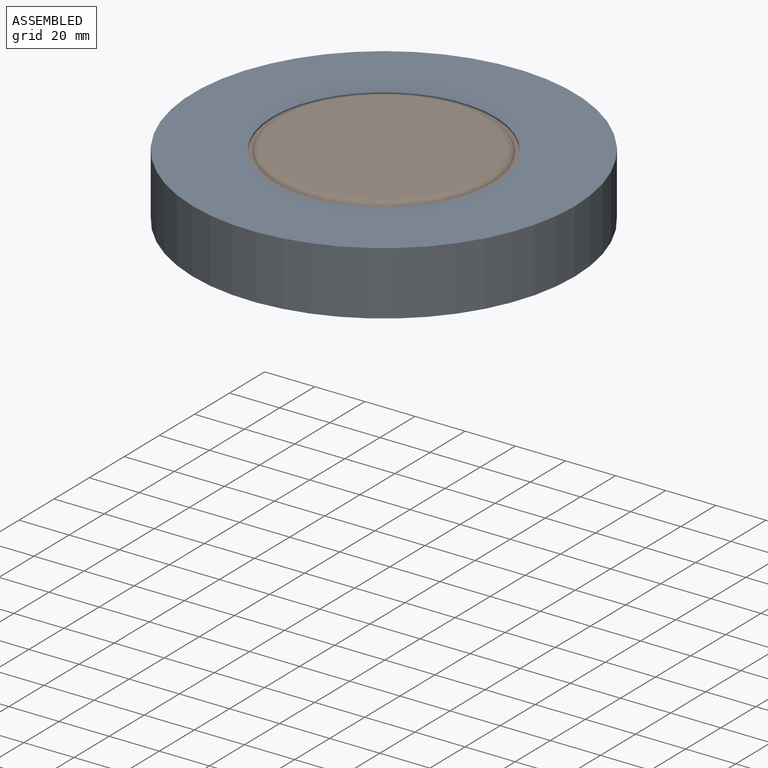
[diagram: assembled view]
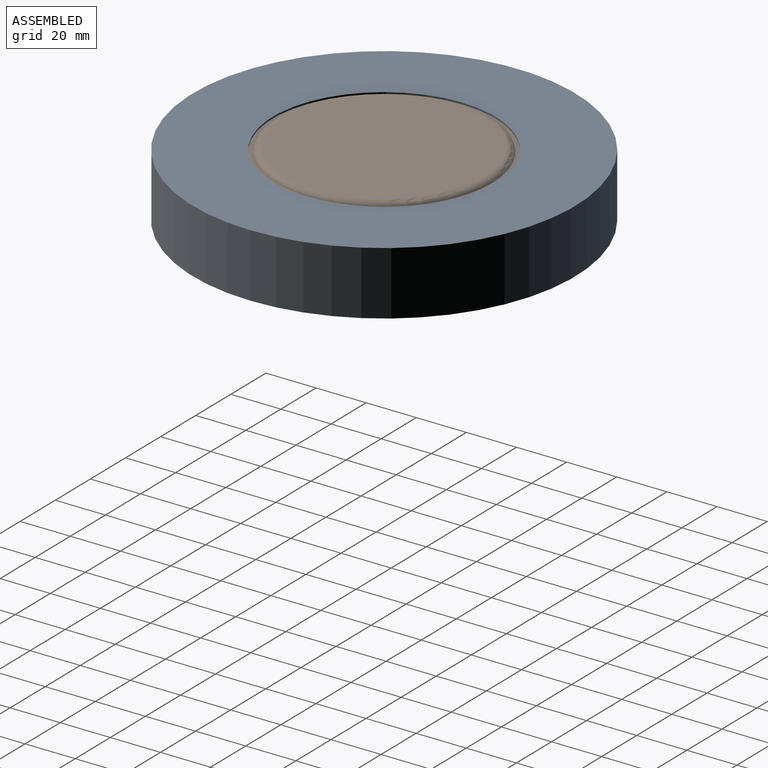
[diagram: assembled view, second angle]
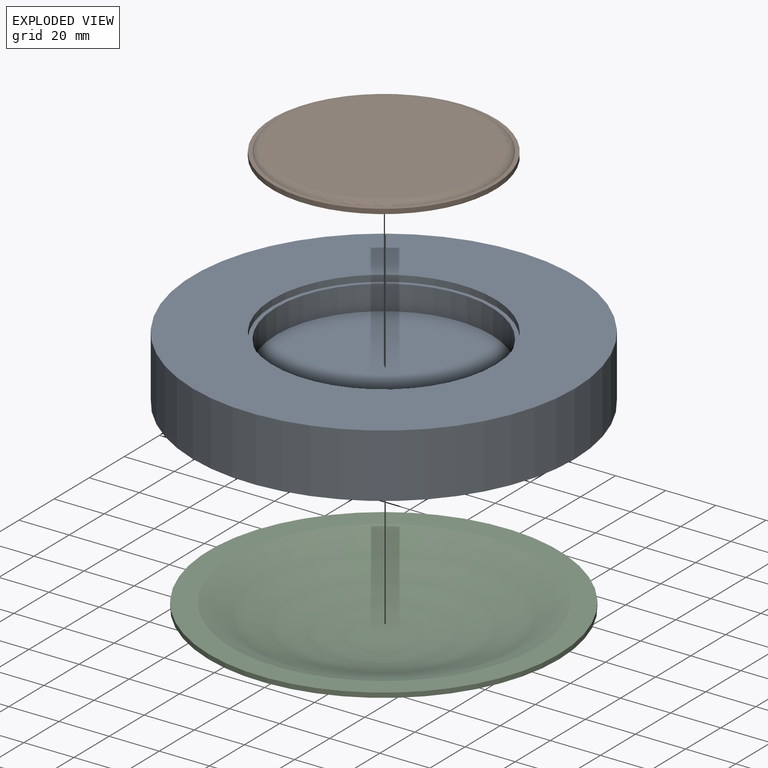
[diagram: exploded view]
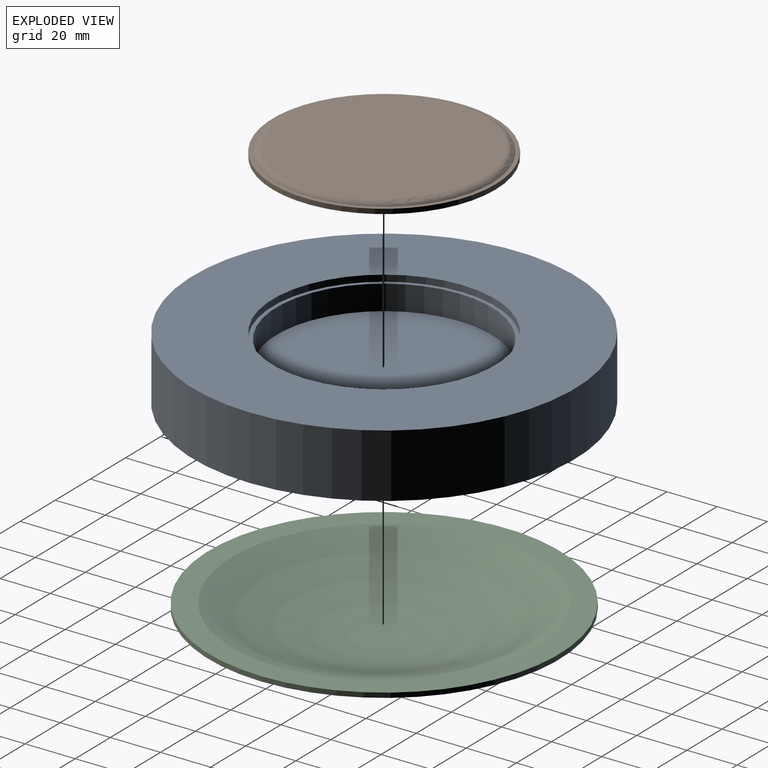
[diagram: exploded view, second angle]
ASSEMBLY  parts=3 mates=2
PART A: 9 faces, bbox 152.4x152.4x25.4 mm
  f0: cylinder r=76.2mm len=152.4mm, axis (0,0,-1), area 12161mm2, adj f1,f2
  f1: plane 152.4x152.4mm, normal (0,0,1), area 12034.3mm2, adj f0,f3
  f2: plane 152.4x152.4mm, normal (0,0,-1), area 2913.6mm2, adj f0,f7
  f3: cylinder r=44.45mm len=88.9mm, axis (0,0,1), area 709.4mm2, adj f1,f4
  f4: plane 88.9x88.9mm, normal (0,0,1), area 418.3mm2, adj f3,f5
  f5: cylinder r=42.93mm len=85.85mm, axis (0,0,1), area 2671.8mm2, adj f4,f6
  f6: plane 85.85x85.85mm, normal (0,0,1), area 5788.8mm2, adj f5
  f7: cylinder r=69.85mm len=139.7mm, axis (0,0,-1), area 1114.8mm2, adj f2,f8
  f8: plane 139.7x139.7mm, normal (0,0,-1), area 15327.9mm2, adj f7
PART B: 7 faces, bbox 93.8x5.3x93.8 mm
  f0: cylinder r=44.45mm len=88.9mm, axis (0,1,0), area 532mm2, adj f1,f6
  f1: plane 88.9x88.9mm, normal (0,1,0), area 418.3mm2, adj f0,f2
  f2: torus R=40mm, axis (0,1,0), area 928.7mm2, adj f1,f3
  f3: plane 80.01x80.01mm, normal (0,1,0), area 5027.8mm2, adj f2
  f4: plane 80.01x80.01mm, normal (0,-1,0), area 5027.8mm2, adj f5
  f5: torus R=40mm, axis (0,1,0), area 928.7mm2, adj f4,f6
  f6: plane 88.9x88.9mm, normal (0,-1,0), area 418.3mm2, adj f0,f5
PART C: 5 faces, bbox 139.7x139.7x17.8 mm
  f0: plane 139.7x139.7mm, normal (0,0,1), area 661.6mm2, adj f1,f4
  f1: cylinder r=69.85mm len=139.7mm, axis (0,0,1), area 836.1mm2, adj f0,f2
  f2: plane 139.7x139.7mm, normal (0,0,-1), area 3702mm2, adj f1,f3
  f3: torus R=3.12mm, axis (0,0,1), area 12150.2mm2, adj f2
  f4: torus R=3.56mm, axis (0,0,1), area 15520.3mm2, adj f0
PLACE A t=(0.08,-0.71,-39.23)mm
PLACE B rot(axis=(-1,0,0),90deg) t=(0.08,-0.71,-15.42)mm
PLACE C rot(axis=(1,0,0),180deg) t=(0.08,-0.71,-36.69)mm
MATE fastened B.f0 <-> A.f0  axis (0,0,-1) through (0.08,-0.71,-16.37)mm
MATE fastened C.f1 <-> A.f7  axis (0,0,1) through (0.08,-0.71,-36.69)mm
